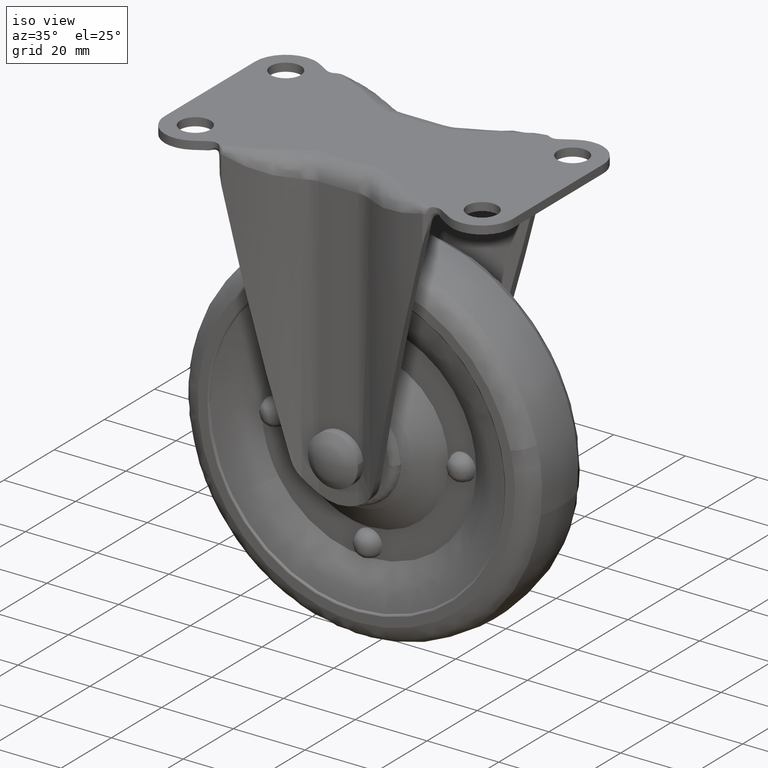
[diagram: clean part render]
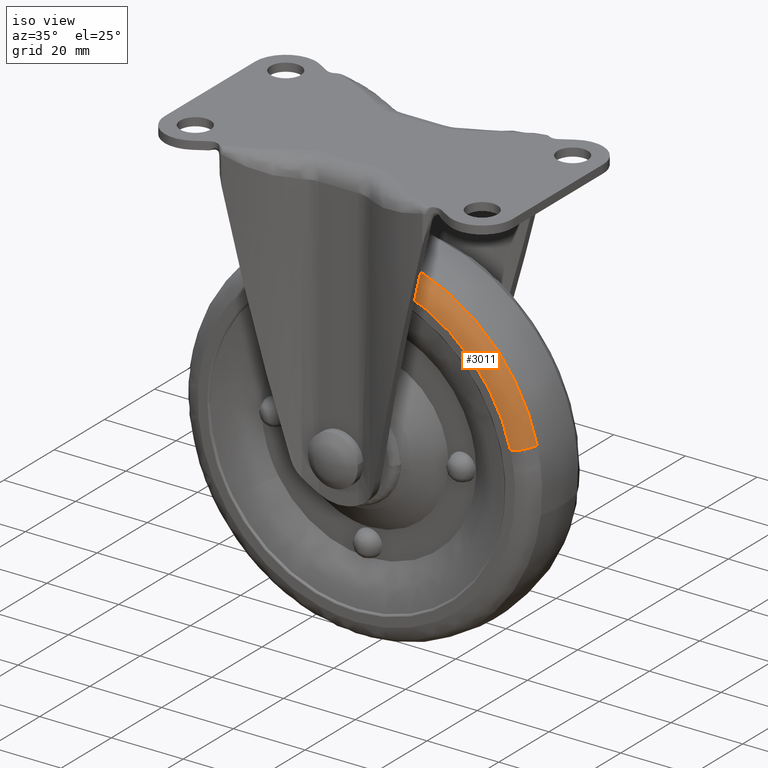
[diagram: same view with one face highlighted and labeled with its STEP entity id]
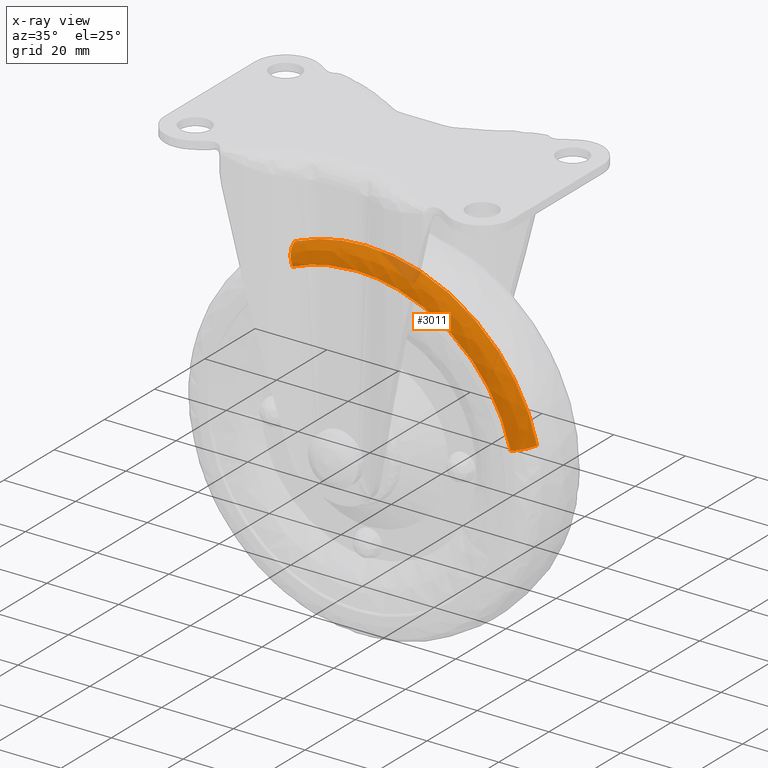
[diagram: x-ray of the same camera — body ghosted, the highlighted face saturated]
A machine part, iso view. The second image highlights one B-rep face of the part: STEP entity #3011.
The next image is the same camera in x-ray: the body ghosted, the highlighted face saturated — about 5% of this face is hidden behind the body in this view.
In plain terms, the highlighted face is a freeform B-spline surface patch.
Its self-contained STEP definition (entity closure, byte-faithful):
#2812=CARTESIAN_POINT('',(-19.769882312171859,-7.200000089804760,-28.030686017630511));
#2813=VERTEX_POINT('',#2812);
#2846=CARTESIAN_POINT('',(47.729640263579633,-7.200028102630204,-61.382417259265473));
#2847=VERTEX_POINT('',#2846);
#2863=CARTESIAN_POINT('',(43.013478054463022,-11.000000000000069,-62.530349746707877));
#2864=VERTEX_POINT('',#2863);
#2865=CARTESIAN_POINT('',(47.729640263579626,-7.200028102630204,-61.382417259265466));
#2866=CARTESIAN_POINT('',(46.816817284628755,-10.999999992424915,-61.604601973585382));
#2867=CARTESIAN_POINT('',(43.013478054463022,-11.000000000000071,-62.530349746707884));
#2875=(BOUNDED_CURVE()B_SPLINE_CURVE(2,(#2865,#2866,#2867),.UNSPECIFIED.,.F.,.U.)B_SPLINE_CURVE_WITH_KNOTS((3,3),(-1.696872439359808,-0.313178854634337),.UNSPECIFIED.)CURVE()GEOMETRIC_REPRESENTATION_ITEM()RATIONAL_B_SPLINE_CURVE((0.897621712257285,0.705698962381329,0.894853527042585))REPRESENTATION_ITEM(''));
#2876=EDGE_CURVE('',#2847,#2864,#2875,.T.);
#2895=CARTESIAN_POINT('',(-17.816419278923931,-11.000000000000069,-32.474106120637678));
#2896=VERTEX_POINT('',#2895);
#2912=CARTESIAN_POINT('',(-19.769882312171859,-7.200000089804760,-28.030686017630511));
#2913=CARTESIAN_POINT('',(-19.391792663026166,-10.999999994622756,-28.890702879517626));
#2914=CARTESIAN_POINT('',(-17.816419278923934,-11.000000000000068,-32.474106120637678));
#2922=(BOUNDED_CURVE()B_SPLINE_CURVE(2,(#2912,#2913,#2914),.UNSPECIFIED.,.F.,.U.)B_SPLINE_CURVE_WITH_KNOTS((3,3),(-1.696878914405983,-0.313178854005137),.UNSPECIFIED.)CURVE()GEOMETRIC_REPRESENTATION_ITEM()RATIONAL_B_SPLINE_CURVE((0.842097372955272,0.662044266042642,0.839498740088652))REPRESENTATION_ITEM(''));
#2923=EDGE_CURVE('',#2813,#2896,#2922,.T.);
#2928=CARTESIAN_POINT('',(47.791795707428534,-6.902756121448602,-61.367288379040438));
#2929=CARTESIAN_POINT('',(36.159084086468972,-6.902756121448602,-13.575492671611910));
#2930=CARTESIAN_POINT('',(-11.632711620959556,-6.902756121448602,-25.208204292571466));
#2931=CARTESIAN_POINT('',(-15.835699137327273,-6.902756121448602,-26.231228035468803));
#2932=CARTESIAN_POINT('',(-19.795616974536824,-6.902756121448599,-27.972127907323650));
#2933=CARTESIAN_POINT('',(47.014478291430414,-11.260880230810413,-61.556490504727677));
#2934=CARTESIAN_POINT('',(35.570968796158091,-11.260880230810416,-14.542012213297248));
#2935=CARTESIAN_POINT('',(-11.443509495272325,-11.260880230810413,-25.985521708569578));
#2936=CARTESIAN_POINT('',(-15.578136839201752,-11.260880230810416,-26.991906315804343));
#2937=CARTESIAN_POINT('',(-19.473647950210260,-11.260880230810416,-28.704491039214336));
#2938=CARTESIAN_POINT('',(42.717243644707033,-10.990695953530546,-62.602454370972602));
#2939=CARTESIAN_POINT('',(32.319698015679634,-10.990695953530549,-19.885210726265573));
#2940=CARTESIAN_POINT('',(-10.397545629027405,-10.990695953530546,-30.282756355292967));
#2941=CARTESIAN_POINT('',(-14.154258242871176,-10.990695953530548,-31.197155026294844));
#2942=CARTESIAN_POINT('',(-17.693710413713319,-10.990695953530548,-32.753205450562618));
#2950=(BOUNDED_SURFACE()B_SPLINE_SURFACE(2,2,((#2928,#2933,#2938),(#2929,#2934,#2939),(#2930,#2935,#2940),(#2931,#2936,#2941),(#2932,#2937,#2942)),.UNSPECIFIED.,.F.,.F.,.U.)B_SPLINE_SURFACE_WITH_KNOTS((3,2,3),(3,3),(0.0,81.495938354329525,91.275441630379078),(0.0,7.586698801749359),.UNSPECIFIED.)GEOMETRIC_REPRESENTATION_ITEM()RATIONAL_B_SPLINE_SURFACE(((0.917747696127859,0.685712242565292,0.914701008513978),(0.648945619350340,0.484871776660553,0.646791285878408),(0.917747696127859,0.685712242565292,0.914701008513978),(0.885491477676514,0.661611409641090,0.882551872457545),(0.860976744270628,0.643294771102454,0.858118521696302)))REPRESENTATION_ITEM('')SURFACE());
#2951=CARTESIAN_POINT('',(0.0,-7.199999969279539,-23.876813552600499));
#2952=VERTEX_POINT('',#2951);
#2953=CARTESIAN_POINT('',(0.0,-7.199999969279539,-23.876813552600499));
#2954=CARTESIAN_POINT('',(-10.321328597016333,-7.199999969279538,-23.876813552600495));
#2955=CARTESIAN_POINT('',(-19.769882312171855,-7.200000089804760,-28.030686017630511));
#2963=(BOUNDED_CURVE()B_SPLINE_CURVE(2,(#2953,#2954,#2955),.UNSPECIFIED.,.F.,.U.)B_SPLINE_CURVE_WITH_KNOTS((3,3),(0.500000000000000,0.568337989602367),.UNSPECIFIED.)CURVE()GEOMETRIC_REPRESENTATION_ITEM()RATIONAL_B_SPLINE_CURVE((1.0,0.919937065032490,0.883644850203737))REPRESENTATION_ITEM(''));
#2964=EDGE_CURVE('',#2952,#2813,#2963,.T.);
#2965=ORIENTED_EDGE('',*,*,#2964,.T.);
#2966=ORIENTED_EDGE('',*,*,#2923,.T.);
#2967=CARTESIAN_POINT('',(0.0,-11.000000000000140,-28.730677999999990));
#2968=VERTEX_POINT('',#2967);
#2969=CARTESIAN_POINT('',(0.0,-11.000000000000140,-28.730677999999990));
#2970=CARTESIAN_POINT('',(-9.301477609777370,-11.000000000000140,-28.730677999999990));
#2971=CARTESIAN_POINT('',(-17.816419278923934,-11.000000000000069,-32.474106120637678));
#2979=(BOUNDED_CURVE()B_SPLINE_CURVE(2,(#2969,#2970,#2971),.UNSPECIFIED.,.F.,.U.)B_SPLINE_CURVE_WITH_KNOTS((3,3),(0.500000000000000,0.568337989565532),.UNSPECIFIED.)CURVE()GEOMETRIC_REPRESENTATION_ITEM()RATIONAL_B_SPLINE_CURVE((1.0,0.919937065075645,0.883644850242861))REPRESENTATION_ITEM(''));
#2980=EDGE_CURVE('',#2968,#2896,#2979,.T.);
#2981=ORIENTED_EDGE('',*,*,#2980,.F.);
#2982=CARTESIAN_POINT('',(43.013478054463022,-11.000000000000075,-62.530349746707884));
#2983=CARTESIAN_POINT('',(34.786504601203376,-11.000000000000140,-28.730678000000001));
#2984=CARTESIAN_POINT('',(0.0,-11.000000000000140,-28.730677999999990));
#2992=(BOUNDED_CURVE()B_SPLINE_CURVE(2,(#2982,#2983,#2984),.UNSPECIFIED.,.F.,.U.)B_SPLINE_CURVE_WITH_KNOTS((3,3),(0.290401677694472,0.500000000000000),.UNSPECIFIED.)CURVE()GEOMETRIC_REPRESENTATION_ITEM()RATIONAL_B_SPLINE_CURVE((0.920631806221714,0.754440290888138,1.0))REPRESENTATION_ITEM(''));
#2993=EDGE_CURVE('',#2864,#2968,#2992,.T.);
#2994=ORIENTED_EDGE('',*,*,#2993,.F.);
#2995=ORIENTED_EDGE('',*,*,#2876,.F.);
#2996=CARTESIAN_POINT('',(47.729640263579611,-7.200028102630204,-61.382417259265466));
#2997=CARTESIAN_POINT('',(38.600634246426409,-7.200012081532456,-23.876813210867546));
#2998=CARTESIAN_POINT('',(0.0,-7.199999969279539,-23.876813552600499));
#3006=(BOUNDED_CURVE()B_SPLINE_CURVE(2,(#2996,#2997,#2998),.UNSPECIFIED.,.F.,.U.)B_SPLINE_CURVE_WITH_KNOTS((3,3),(0.290401669770796,0.500000000000000),.UNSPECIFIED.)CURVE()GEOMETRIC_REPRESENTATION_ITEM()RATIONAL_B_SPLINE_CURVE((0.920631818787157,0.754440281604973,1.0))REPRESENTATION_ITEM(''));
#3007=EDGE_CURVE('',#2847,#2952,#3006,.T.);
#3008=ORIENTED_EDGE('',*,*,#3007,.T.);
#3009=EDGE_LOOP('',(#2965,#2966,#2981,#2994,#2995,#3008));
#3010=FACE_OUTER_BOUND('',#3009,.T.);
#3011=ADVANCED_FACE('',(#3010),#2950,.T.);